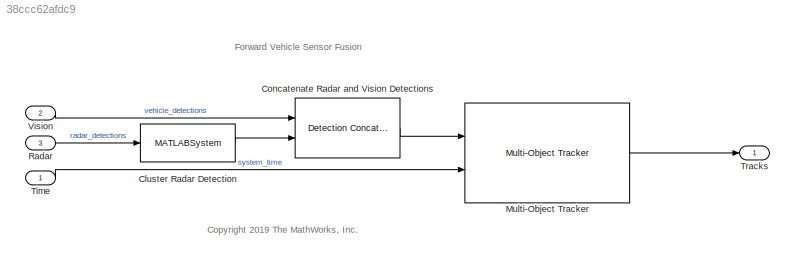
MODEL slx_38ccc62afdc9
KIND model
CONFIG AbsTol = auto
CONFIG EnableMultiTasking = off
CONFIG FixedStep = auto
CONFIG MaxStep = auto
CONFIG MinStep = auto
CONFIG RelTol = 1e-3
CONFIG SampleTimeConstraint = Unconstrained
CONFIG Solver = FixedStepAuto
CONFIG SolverName = FixedStepAuto
CONFIG StartTime = 0.0
CONFIG StopTime = scenario.StopTime
BLOCK [MATLABSystem] Cluster Radar Detection
  BusName = BusClusterDetections
  BusNameSource = Auto
  ClusterSize = clusterSize
  MaskDisplay = disp(['Detection' char(10) 'Clustering']);\nport_label('input',1,'In');\nport_label('output',1,'Out');
  MaskType = helperClusterPositionDetections
  Ports = [1, 1]
  SimulateUsing = Interpreted execution
  System = helperClusterPositionDetections
BLOCK [Reference] Concatenate Radar and Vision Detections  REF=drivinglib/Detection Concatenation
  Ports = [2, 1]
  SourceBlock = drivinglib/Detection Concatenation
  SourceProductBaseCode = DR
  SourceType = driving.internal.DetectionConcatenation
BLOCK [Reference] Multi-Object Tracker  REF=drivinglib/Multi-Object Tracker
  Ports = [2, 1]
  SourceBlock = drivinglib/Multi-Object Tracker
  SourceProductBaseCode = DR
  SourceType = multiObjectTracker
BLOCK [Inport] Radar
  BusOutputAsStruct = on
  OutDataTypeStr = Bus: BusRadar
  Port = 3
  PortDimensions = [1 1]
  SampleTime = [0.10000000000000001,0]
BLOCK [Inport] Time
  OutDataTypeStr = double
  PortDimensions = [1 1]
  SampleTime = [0.10000000000000001,0]
  SamplingMode = Sample based
  SignalType = real
BLOCK [Outport] Tracks
  BusOutputAsStruct = on
  OutDataTypeStr = Bus: BusMultiObjectTracker
  PortDimensions = [1 1]
  SampleTime = [0.10000000000000001,0]
  SamplingMode = Sample based
  SignalType = real
  VectorParamsAs1DForOutWhenUnconnected = off
BLOCK [Inport] Vision
  BusOutputAsStruct = on
  OutDataTypeStr = Bus: BusVision
  Port = 2
  PortDimensions = [1 1]
  SampleTime = [0.10000000000000001,0]
ANNOTATION (root): <copyright redacted>
ANNOTATION (root): Forward Vehicle Sensor Fusion
LINE Cluster Radar Detection:1 -> Concatenate Radar and Vision Detections:2
LINE Concatenate Radar and Vision Detections:1 -> Multi-Object Tracker:1
LINE Multi-Object Tracker:1 -> Tracks:1
LINE Radar:1 -> Cluster Radar Detection:1
LINE Time:1 -> Multi-Object Tracker:2
LINE Vision:1 -> Concatenate Radar and Vision Detections:1
